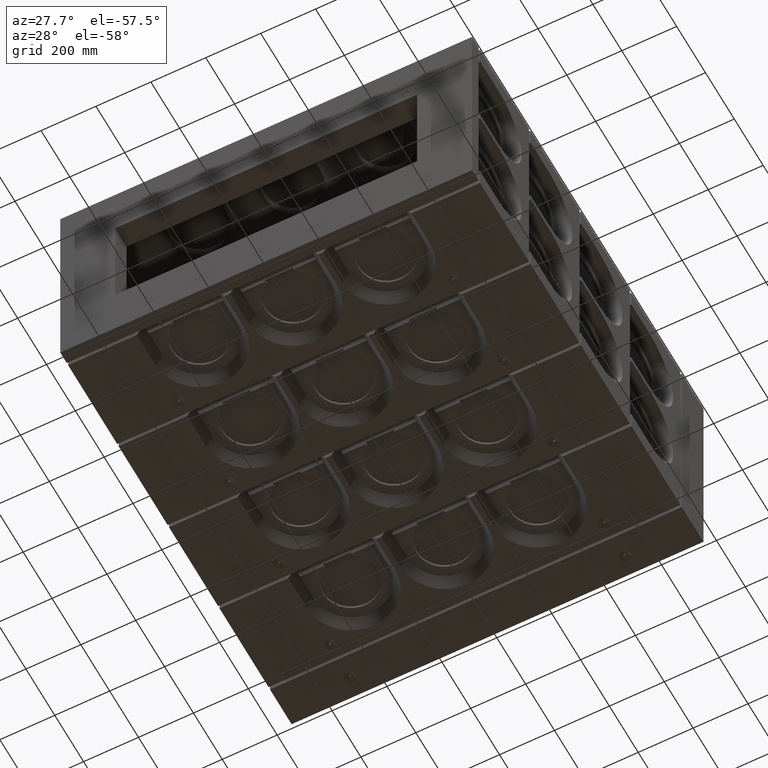
[diagram: clean part render]
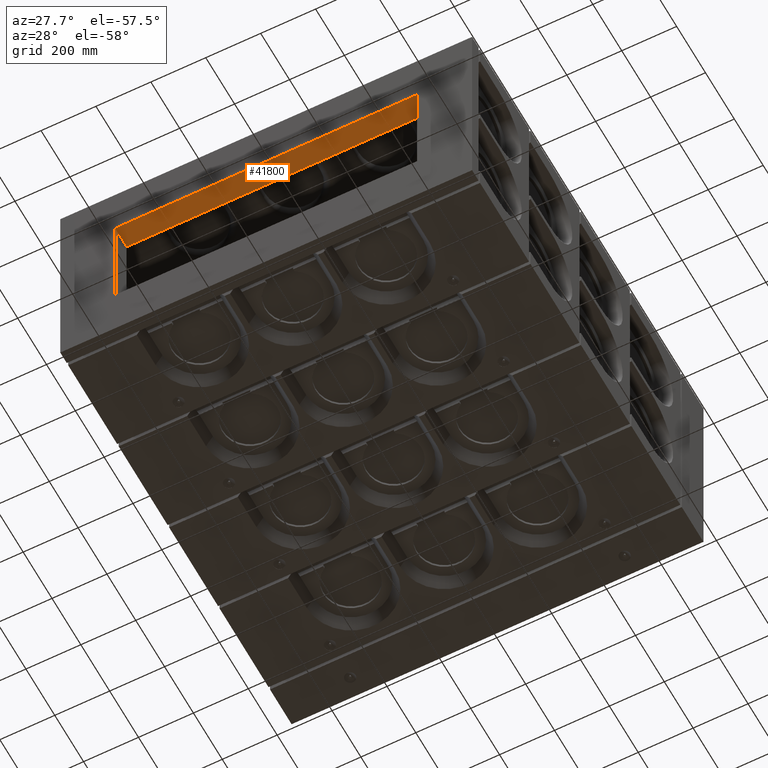
[diagram: same view with one face highlighted and labeled with its STEP entity id]
A machine part, auxiliary view. The second image highlights one B-rep face of the part: STEP entity #41800.
In plain terms, the highlighted planar face has unit normal (-0, 0, 1).
Its self-contained STEP definition (entity closure, byte-faithful):
#757 = DIRECTION ( 'NONE',  ( -0.0000000000000000000, 0.0000000000000000000, 1.000000000000000000 ) ) ;
#910 = AXIS2_PLACEMENT_3D ( 'NONE', #16666, #757, #8404 ) ;
#4672 = VERTEX_POINT ( 'NONE', #13004 ) ;
#4846 = ORIENTED_EDGE ( 'NONE', *, *, #48631, .T. ) ;
#8404 = DIRECTION ( 'NONE',  ( 1.000000000000000000, 0.0000000000000000000, 0.0000000000000000000 ) ) ;
#9002 = VECTOR ( 'NONE', #14919, 1000.000000000000000 ) ;
#9507 = EDGE_CURVE ( 'NONE', #49183, #4672, #34654, .T. ) ;
#9895 = DIRECTION ( 'NONE',  ( 1.000000000000000000, 0.0000000000000000000, 0.0000000000000000000 ) ) ;
#11492 = CARTESIAN_POINT ( 'NONE',  ( -550.0000000000000000, 80.00000000000000000, 200.0000000000000568 ) ) ;
#13004 = CARTESIAN_POINT ( 'NONE',  ( 550.0000000000000000, 0.0000000000000000000, 200.0000000000000568 ) ) ;
#13152 = CARTESIAN_POINT ( 'NONE',  ( -550.0000000000000000, 0.0000000000000000000, 200.0000000000000000 ) ) ;
#14647 = VECTOR ( 'NONE', #38184, 1000.000000000000000 ) ;
#14919 = DIRECTION ( 'NONE',  ( -0.0000000000000000000, 1.000000000000000000, -0.0000000000000000000 ) ) ;
#16666 = CARTESIAN_POINT ( 'NONE',  ( -550.0000000000000000, 0.0000000000000000000, 200.0000000000000000 ) ) ;
#18205 = VERTEX_POINT ( 'NONE', #11492 ) ;
#20025 = PLANE ( 'NONE',  #910 ) ;
#20231 = VERTEX_POINT ( 'NONE', #44252 ) ;
#22955 = VECTOR ( 'NONE', #39192, 1000.000000000000000 ) ;
#23321 = ORIENTED_EDGE ( 'NONE', *, *, #9507, .F. ) ;
#24203 = LINE ( 'NONE', #35370, #22955 ) ;
#26333 = CARTESIAN_POINT ( 'NONE',  ( 550.0000000000000000, 0.0000000000000000000, 200.0000000000000000 ) ) ;
#28649 = CARTESIAN_POINT ( 'NONE',  ( -550.0000000000000000, 80.00000000000000000, 200.0000000000000000 ) ) ;
#29317 = VECTOR ( 'NONE', #9895, 1000.000000000000000 ) ;
#29771 = ORIENTED_EDGE ( 'NONE', *, *, #41779, .T. ) ;
#30365 = CARTESIAN_POINT ( 'NONE',  ( -550.0000000000000000, 0.0000000000000000000, 200.0000000000000000 ) ) ;
#31414 = EDGE_CURVE ( 'NONE', #4672, #20231, #41547, .T. ) ;
#33249 = ORIENTED_EDGE ( 'NONE', *, *, #31414, .F. ) ;
#34654 = LINE ( 'NONE', #30365, #14647 ) ;
#35370 = CARTESIAN_POINT ( 'NONE',  ( -550.0000000000000000, 0.0000000000000000000, 200.0000000000000000 ) ) ;
#38184 = DIRECTION ( 'NONE',  ( 1.000000000000000000, 0.0000000000000000000, 0.0000000000000000000 ) ) ;
#38644 = LINE ( 'NONE', #28649, #29317 ) ;
#39192 = DIRECTION ( 'NONE',  ( -0.0000000000000000000, 1.000000000000000000, -0.0000000000000000000 ) ) ;
#39375 = EDGE_LOOP ( 'NONE', ( #4846, #33249, #23321, #29771 ) ) ;
#41547 = LINE ( 'NONE', #26333, #9002 ) ;
#41779 = EDGE_CURVE ( 'NONE', #49183, #18205, #24203, .T. ) ;
#41800 = ADVANCED_FACE ( 'NONE', ( #49782 ), #20025, .F. ) ;
#44252 = CARTESIAN_POINT ( 'NONE',  ( 550.0000000000000000, 80.00000000000000000, 200.0000000000000000 ) ) ;
#48631 = EDGE_CURVE ( 'NONE', #18205, #20231, #38644, .T. ) ;
#49183 = VERTEX_POINT ( 'NONE', #13152 ) ;
#49782 = FACE_OUTER_BOUND ( 'NONE', #39375, .T. ) ;